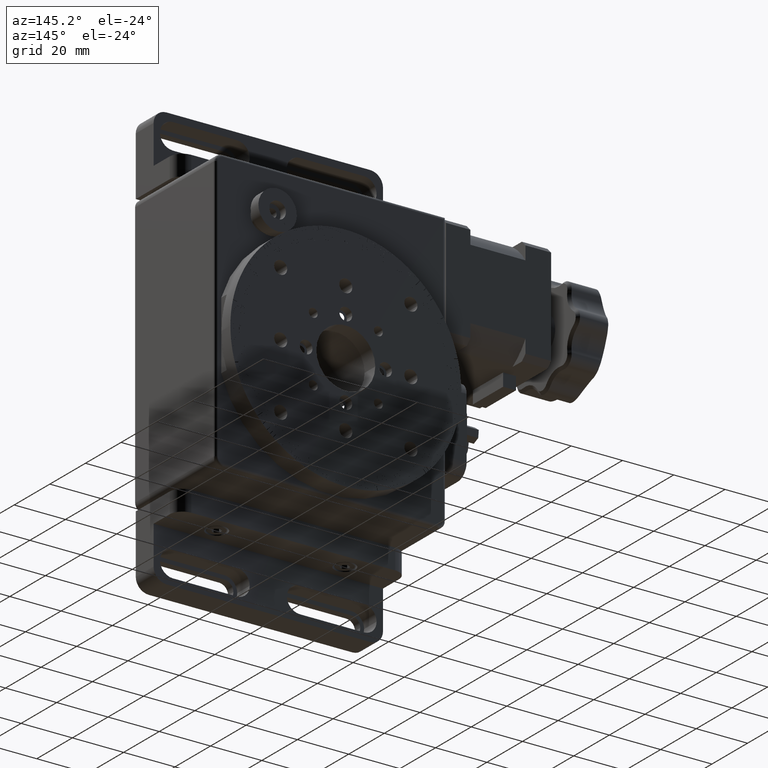
[diagram: clean part render]
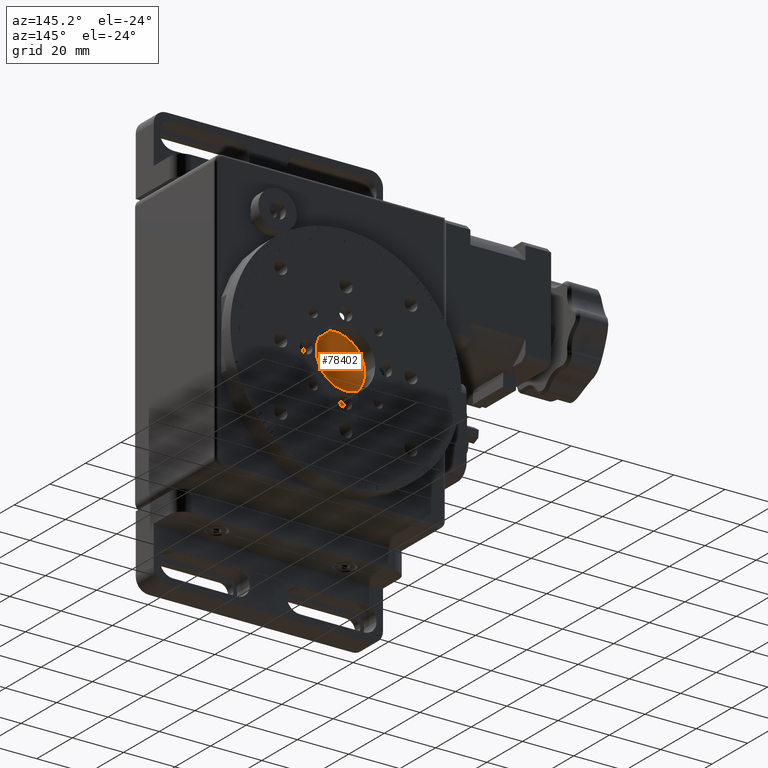
[diagram: same view with one face highlighted and labeled with its STEP entity id]
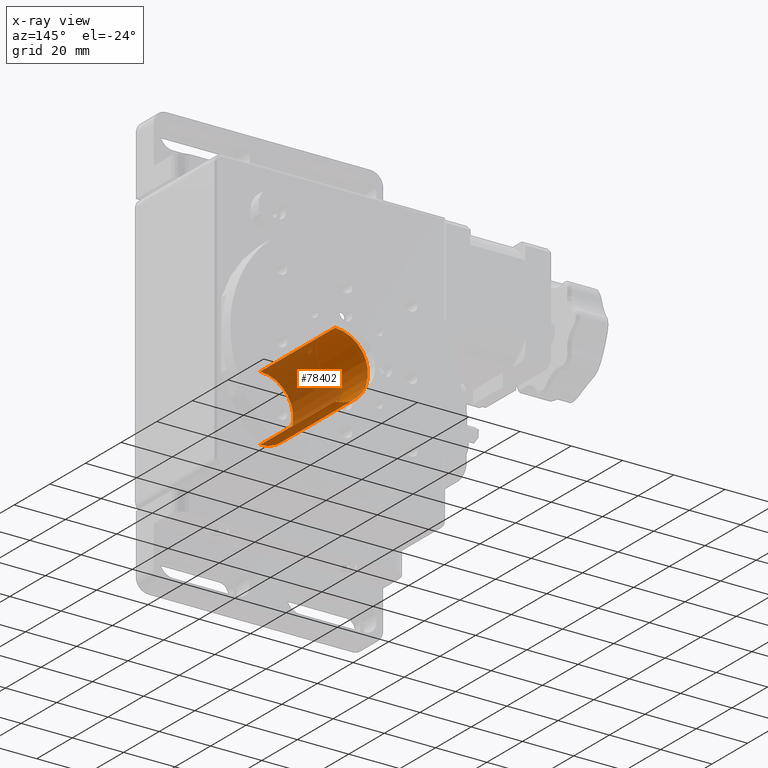
[diagram: x-ray of the same camera — body ghosted, the highlighted face saturated]
A machine part, auxiliary view. The second image highlights one B-rep face of the part: STEP entity #78402.
The next image is the same camera in x-ray: the body ghosted, the highlighted face saturated — about 56% of this face is hidden behind the body in this view.
In plain terms, the highlighted cylindrical surface (partial cylindrical patch) has radius 12.85 mm, axis along (0, -1, -0).
Its self-contained STEP definition (entity closure, byte-faithful):
#9489 = VERTEX_POINT ( 'NONE', #12253 ) ;
#11377 = LINE ( 'NONE', #92604, #56466 ) ;
#11714 = EDGE_CURVE ( 'NONE', #14539, #85856, #45963, .T. ) ;
#12253 = CARTESIAN_POINT ( 'NONE',  ( -1.395622135936116200E-015, 5.500000000000008900, -12.85000000000000700 ) ) ;
#14254 = CARTESIAN_POINT ( 'NONE',  ( 3.151663482361699100E-015, 5.500000000000006200, -4.911796168652271100E-015 ) ) ;
#14539 = VERTEX_POINT ( 'NONE', #58335 ) ;
#21982 = EDGE_CURVE ( 'NONE', #14539, #64860, #11377, .T. ) ;
#22763 = DIRECTION ( 'NONE',  ( 2.081668171172168000E-016, -2.024969038105221800E-016, 1.000000000000000000 ) ) ;
#23940 = DIRECTION ( 'NONE',  ( 1.422242292558232800E-017, -1.000000000000000000, -2.066010568095078100E-016 ) ) ;
#24497 = DIRECTION ( 'NONE',  ( 1.422242292558232800E-017, -1.000000000000000000, -2.066010568095078300E-016 ) ) ;
#24896 = CYLINDRICAL_SURFACE ( 'NONE', #74300, 12.85000000000000300 ) ;
#36850 = DIRECTION ( 'NONE',  ( 2.081668171172168300E-016, 0.0000000000000000000, 1.000000000000000000 ) ) ;
#39049 = AXIS2_PLACEMENT_3D ( 'NONE', #14254, #73457, #22763 ) ;
#39131 = CARTESIAN_POINT ( 'NONE',  ( 5.826607082317936000E-015, 5.500000000000004400, 12.84999999999999800 ) ) ;
#39861 = LINE ( 'NONE', #100964, #82322 ) ;
#41149 = ORIENTED_EDGE ( 'NONE', *, *, #108118, .F. ) ;
#45963 = CIRCLE ( 'NONE', #46745, 12.85000000000000300 ) ;
#46745 = AXIS2_PLACEMENT_3D ( 'NONE', #74658, #23940, #83187 ) ;
#53570 = DIRECTION ( 'NONE',  ( 1.422242292558232800E-017, -1.000000000000000000, -2.066010568095078300E-016 ) ) ;
#54678 = ORIENTED_EDGE ( 'NONE', *, *, #96864, .T. ) ;
#55387 = FACE_OUTER_BOUND ( 'NONE', #68051, .T. ) ;
#56466 = VECTOR ( 'NONE', #24497, 1000.000000000000000 ) ;
#58335 = CARTESIAN_POINT ( 'NONE',  ( 5.229265319443478300E-015, 47.50000000000000700, 12.85000000000000700 ) ) ;
#58719 = DIRECTION ( 'NONE',  ( 1.422242292558232800E-017, -1.000000000000000000, -2.066010568095078300E-016 ) ) ;
#60679 = CARTESIAN_POINT ( 'NONE',  ( -1.395622135936114200E-015, 47.50000000000000700, -12.84999999999999600 ) ) ;
#62084 = CARTESIAN_POINT ( 'NONE',  ( 2.554321719487241700E-015, 47.50000000000000700, 3.765448217347056800E-015 ) ) ;
#64860 = VERTEX_POINT ( 'NONE', #39131 ) ;
#68051 = EDGE_LOOP ( 'NONE', ( #41149, #108228, #108330, #54678 ) ) ;
#68802 = CIRCLE ( 'NONE', #39049, 12.85000000000000300 ) ;
#73457 = DIRECTION ( 'NONE',  ( 1.422242292558232800E-017, -1.000000000000000000, -2.066010568095078100E-016 ) ) ;
#74300 = AXIS2_PLACEMENT_3D ( 'NONE', #62084, #53570, #36850 ) ;
#74658 = CARTESIAN_POINT ( 'NONE',  ( 2.554321719487241700E-015, 47.50000000000000700, 3.765448217347056800E-015 ) ) ;
#78402 = ADVANCED_FACE ( 'NONE', ( #55387 ), #24896, .F. ) ;
#82322 = VECTOR ( 'NONE', #58719, 1000.000000000000000 ) ;
#83187 = DIRECTION ( 'NONE',  ( 2.081668171172168300E-016, 0.0000000000000000000, 1.000000000000000000 ) ) ;
#85856 = VERTEX_POINT ( 'NONE', #60679 ) ;
#92604 = CARTESIAN_POINT ( 'NONE',  ( 5.229265319443478300E-015, 47.50000000000000700, 12.85000000000000700 ) ) ;
#96864 = EDGE_CURVE ( 'NONE', #64860, #9489, #68802, .T. ) ;
#100964 = CARTESIAN_POINT ( 'NONE',  ( -1.694293017373344100E-015, 47.50000000000000700, -12.85000000000000000 ) ) ;
#108118 = EDGE_CURVE ( 'NONE', #85856, #9489, #39861, .T. ) ;
#108228 = ORIENTED_EDGE ( 'NONE', *, *, #11714, .F. ) ;
#108330 = ORIENTED_EDGE ( 'NONE', *, *, #21982, .T. ) ;